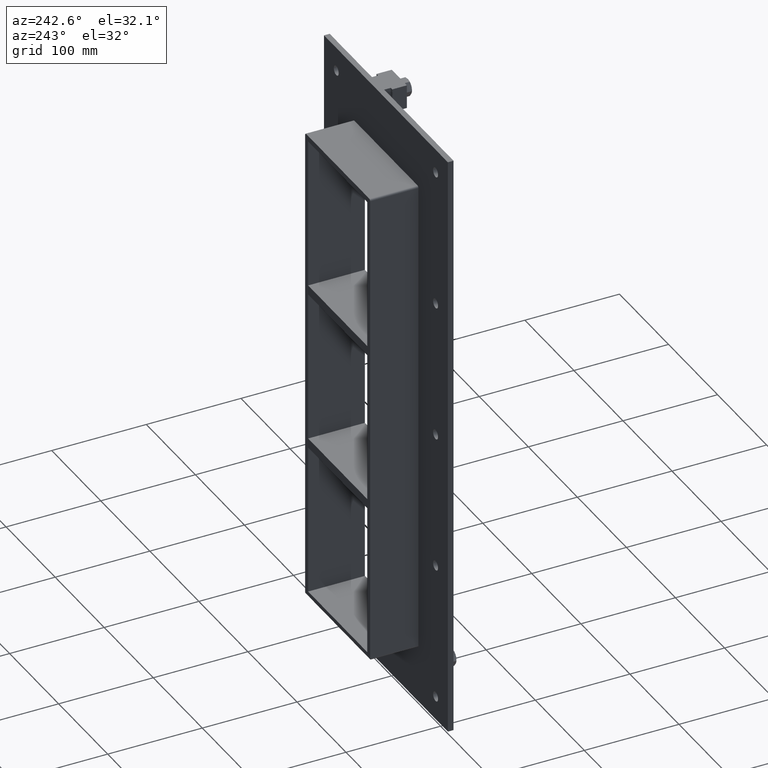
[diagram: clean part render]
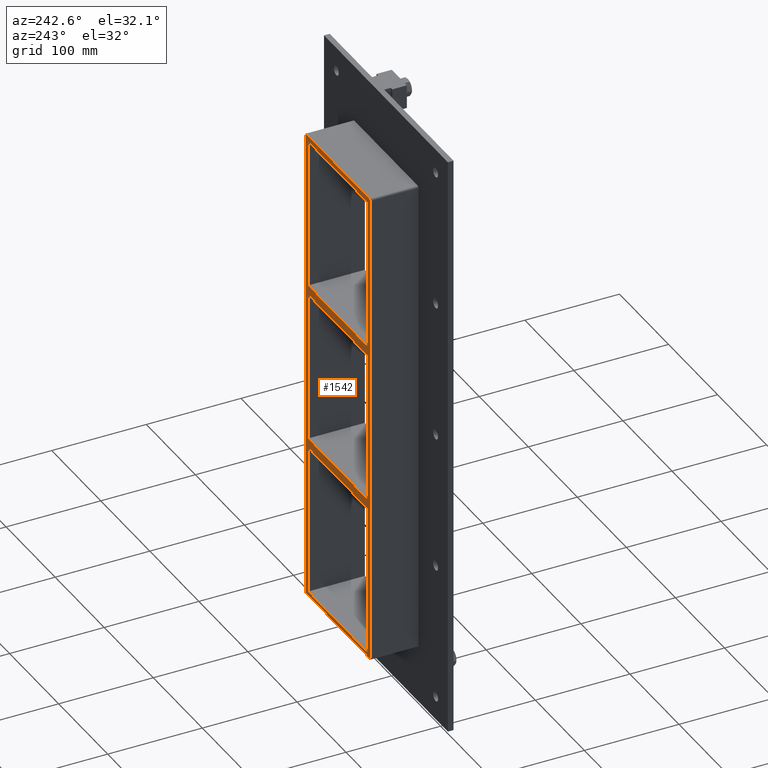
[diagram: same view with one face highlighted and labeled with its STEP entity id]
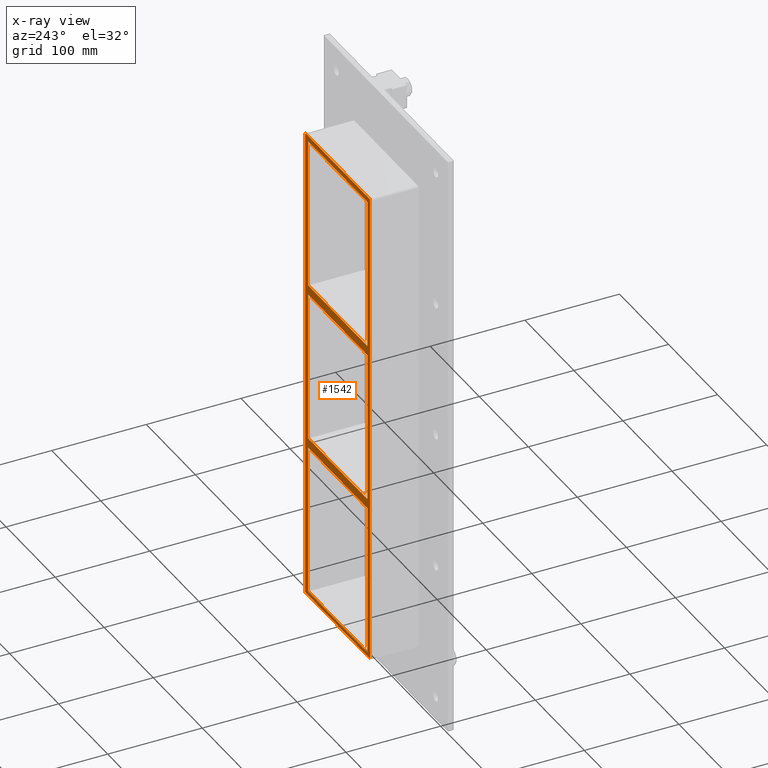
[diagram: x-ray of the same camera — body ghosted, the highlighted face saturated]
A machine part, auxiliary view. The second image highlights one B-rep face of the part: STEP entity #1542.
The next image is the same camera in x-ray: the body ghosted, the highlighted face saturated — about 0% of this face is hidden behind the body in this view.
In plain terms, the highlighted planar face has unit normal (0, 1, 0).
Its self-contained STEP definition (entity closure, byte-faithful):
#363=CARTESIAN_POINT('',(-60.249999999998735,57.0,79.749999999988432));
#364=VERTEX_POINT('',#363);
#371=CARTESIAN_POINT('',(60.249999999996369,57.0,79.749999999989072));
#372=VERTEX_POINT('',#371);
#373=CARTESIAN_POINT('',(60.249999999996362,57.0,79.749999999989072));
#374=DIRECTION('',(-1.0,0.0,0.0));
#375=VECTOR('',#374,120.49999999999511);
#376=LINE('',#373,#375);
#377=EDGE_CURVE('',#372,#364,#376,.T.);
#403=CARTESIAN_POINT('',(60.249999999999588,57.0,89.749999999999801));
#404=VERTEX_POINT('',#403);
#411=CARTESIAN_POINT('',(-60.249999999998735,57.0,89.749999999999801));
#412=VERTEX_POINT('',#411);
#413=CARTESIAN_POINT('',(-60.249999999998735,57.0,89.749999999999801));
#414=DIRECTION('',(1.0,0.0,0.0));
#415=VECTOR('',#414,120.49999999999832);
#416=LINE('',#413,#415);
#417=EDGE_CURVE('',#412,#404,#416,.T.);
#434=CARTESIAN_POINT('',(-60.249999999999993,57.0,249.25));
#435=VERTEX_POINT('',#434);
#436=CARTESIAN_POINT('',(-60.249999999999993,57.0,249.25));
#437=DIRECTION('',(0.0,0.0,-1.0));
#438=VECTOR('',#437,159.50000000000023);
#439=LINE('',#436,#438);
#440=EDGE_CURVE('',#435,#412,#439,.T.);
#465=CARTESIAN_POINT('',(60.249999999999588,57.0,-79.750000000000227));
#466=VERTEX_POINT('',#465);
#467=CARTESIAN_POINT('',(60.249999999999993,57.0,-79.750000000000227));
#468=DIRECTION('',(0.0,0.0,1.0));
#469=VECTOR('',#468,159.49999999998931);
#470=LINE('',#467,#469);
#471=EDGE_CURVE('',#466,#372,#470,.T.);
#504=CARTESIAN_POINT('',(60.249999999999993,57.0,249.25));
#505=VERTEX_POINT('',#504);
#512=CARTESIAN_POINT('',(60.249999999999993,57.0,89.749999999999801));
#513=DIRECTION('',(0.0,0.0,1.0));
#514=VECTOR('',#513,159.5000000000002);
#515=LINE('',#512,#514);
#516=EDGE_CURVE('',#404,#505,#515,.T.);
#536=CARTESIAN_POINT('',(-60.249999999998735,57.0,-89.750000000011596));
#537=VERTEX_POINT('',#536);
#544=CARTESIAN_POINT('',(60.249999999996369,57.0,-89.750000000010957));
#545=VERTEX_POINT('',#544);
#546=CARTESIAN_POINT('',(60.249999999996362,57.0,-89.750000000010957));
#547=DIRECTION('',(-1.0,0.0,0.0));
#548=VECTOR('',#547,120.49999999999511);
#549=LINE('',#546,#548);
#550=EDGE_CURVE('',#545,#537,#549,.T.);
#575=CARTESIAN_POINT('',(-60.249999999998735,57.0,-79.750000000000227));
#576=VERTEX_POINT('',#575);
#577=CARTESIAN_POINT('',(-60.249999999998735,57.0,-79.750000000000227));
#578=DIRECTION('',(1.0,0.0,0.0));
#579=VECTOR('',#578,120.49999999999832);
#580=LINE('',#577,#579);
#581=EDGE_CURVE('',#576,#466,#580,.T.);
#605=CARTESIAN_POINT('',(-60.249999999999993,57.0,79.749999999988404));
#606=DIRECTION('',(0.0,0.0,-1.0));
#607=VECTOR('',#606,159.49999999998863);
#608=LINE('',#605,#607);
#609=EDGE_CURVE('',#364,#576,#608,.T.);
#620=CARTESIAN_POINT('',(60.249999999999993,57.0,-249.25));
#621=VERTEX_POINT('',#620);
#622=CARTESIAN_POINT('',(60.249999999999993,57.0,-249.25));
#623=DIRECTION('',(0.0,0.0,1.0));
#624=VECTOR('',#623,159.49999999998906);
#625=LINE('',#622,#624);
#626=EDGE_CURVE('',#621,#545,#625,.T.);
#1007=CARTESIAN_POINT('',(-60.249999999999993,57.0,-249.25));
#1008=VERTEX_POINT('',#1007);
#1015=CARTESIAN_POINT('',(-60.249999999999993,57.0,-89.750000000011596));
#1016=DIRECTION('',(0.0,0.0,-1.0));
#1017=VECTOR('',#1016,159.4999999999884);
#1018=LINE('',#1015,#1017);
#1019=EDGE_CURVE('',#537,#1008,#1018,.T.);
#1118=CARTESIAN_POINT('',(66.25,57.0,-253.25000000000006));
#1119=VERTEX_POINT('',#1118);
#1191=CARTESIAN_POINT('',(-66.25,57.0,-253.25000000000003));
#1192=VERTEX_POINT('',#1191);
#1265=CARTESIAN_POINT('',(-66.25,57.0,253.25000000000006));
#1266=VERTEX_POINT('',#1265);
#1273=CARTESIAN_POINT('',(-66.25,57.0,-253.25000000000003));
#1274=DIRECTION('',(0.0,0.0,1.0));
#1275=VECTOR('',#1274,506.50000000000011);
#1276=LINE('',#1273,#1275);
#1277=EDGE_CURVE('',#1192,#1266,#1276,.T.);
#1330=CARTESIAN_POINT('',(-66.25,57.0,-253.25000000000003));
#1331=DIRECTION('',(1.0,0.0,0.0));
#1332=VECTOR('',#1331,132.5);
#1333=LINE('',#1330,#1332);
#1334=EDGE_CURVE('',#1192,#1119,#1333,.T.);
#1348=CARTESIAN_POINT('',(-64.25,57.0,255.25000000000003));
#1349=VERTEX_POINT('',#1348);
#1356=CARTESIAN_POINT('',(-64.25,57.0,253.25000000000003));
#1357=DIRECTION('',(0.0,-1.0,0.0));
#1358=DIRECTION('',(-0.707106781186541,0.0,0.707106781186554));
#1359=AXIS2_PLACEMENT_3D('',#1356,#1357,#1358);
#1360=CIRCLE('',#1359,2.0);
#1361=EDGE_CURVE('',#1349,#1266,#1360,.T.);
#1373=CARTESIAN_POINT('',(64.25,57.0,255.25000000000003));
#1374=VERTEX_POINT('',#1373);
#1381=CARTESIAN_POINT('',(-64.25,57.0,255.25000000000003));
#1382=DIRECTION('',(1.0,0.0,0.0));
#1383=VECTOR('',#1382,128.5);
#1384=LINE('',#1381,#1383);
#1385=EDGE_CURVE('',#1349,#1374,#1384,.T.);
#1441=CARTESIAN_POINT('',(66.25,57.0,253.25000000000003));
#1442=VERTEX_POINT('',#1441);
#1449=CARTESIAN_POINT('',(64.25,57.0,253.25000000000003));
#1450=DIRECTION('',(0.0,-1.0,0.0));
#1451=DIRECTION('',(0.707106781186541,0.0,0.707106781186554));
#1452=AXIS2_PLACEMENT_3D('',#1449,#1450,#1451);
#1453=CIRCLE('',#1452,2.0);
#1454=EDGE_CURVE('',#1442,#1374,#1453,.T.);
#1467=CARTESIAN_POINT('',(66.25,57.0,253.25000000000003));
#1468=DIRECTION('',(0.0,0.0,-1.0));
#1469=VECTOR('',#1468,506.50000000000011);
#1470=LINE('',#1467,#1469);
#1471=EDGE_CURVE('',#1442,#1119,#1470,.T.);
#1483=CARTESIAN_POINT('',(60.25,57.0,249.25));
#1484=DIRECTION('',(-1.0,0.0,0.0));
#1485=VECTOR('',#1484,120.5);
#1486=LINE('',#1483,#1485);
#1487=EDGE_CURVE('',#505,#435,#1486,.T.);
#1502=CARTESIAN_POINT('',(-60.25,57.0,-249.25));
#1503=DIRECTION('',(1.0,0.0,0.0));
#1504=VECTOR('',#1503,120.5);
#1505=LINE('',#1502,#1504);
#1506=EDGE_CURVE('',#1008,#621,#1505,.T.);
#1511=CARTESIAN_POINT('',(0.0,57.0,0.0));
#1512=DIRECTION('',(0.0,1.0,0.0));
#1513=DIRECTION('',(0.0,0.0,1.0));
#1514=AXIS2_PLACEMENT_3D('',#1511,#1512,#1513);
#1515=PLANE('',#1514);
#1516=ORIENTED_EDGE('',*,*,#1334,.F.);
#1517=ORIENTED_EDGE('',*,*,#1277,.T.);
#1518=ORIENTED_EDGE('',*,*,#1361,.F.);
#1519=ORIENTED_EDGE('',*,*,#1385,.T.);
#1520=ORIENTED_EDGE('',*,*,#1454,.F.);
#1521=ORIENTED_EDGE('',*,*,#1471,.T.);
#1522=EDGE_LOOP('',(#1516,#1517,#1518,#1519,#1520,#1521));
#1523=FACE_OUTER_BOUND('',#1522,.T.);
#1524=ORIENTED_EDGE('',*,*,#609,.T.);
#1525=ORIENTED_EDGE('',*,*,#581,.T.);
#1526=ORIENTED_EDGE('',*,*,#471,.T.);
#1527=ORIENTED_EDGE('',*,*,#377,.T.);
#1528=EDGE_LOOP('',(#1524,#1525,#1526,#1527));
#1529=FACE_BOUND('',#1528,.T.);
#1530=ORIENTED_EDGE('',*,*,#1019,.T.);
#1531=ORIENTED_EDGE('',*,*,#1506,.T.);
#1532=ORIENTED_EDGE('',*,*,#626,.T.);
#1533=ORIENTED_EDGE('',*,*,#550,.T.);
#1534=EDGE_LOOP('',(#1530,#1531,#1532,#1533));
#1535=FACE_BOUND('',#1534,.T.);
#1536=ORIENTED_EDGE('',*,*,#417,.T.);
#1537=ORIENTED_EDGE('',*,*,#516,.T.);
#1538=ORIENTED_EDGE('',*,*,#1487,.T.);
#1539=ORIENTED_EDGE('',*,*,#440,.T.);
#1540=EDGE_LOOP('',(#1536,#1537,#1538,#1539));
#1541=FACE_BOUND('',#1540,.T.);
#1542=ADVANCED_FACE('',(#1523,#1529,#1535,#1541),#1515,.T.);